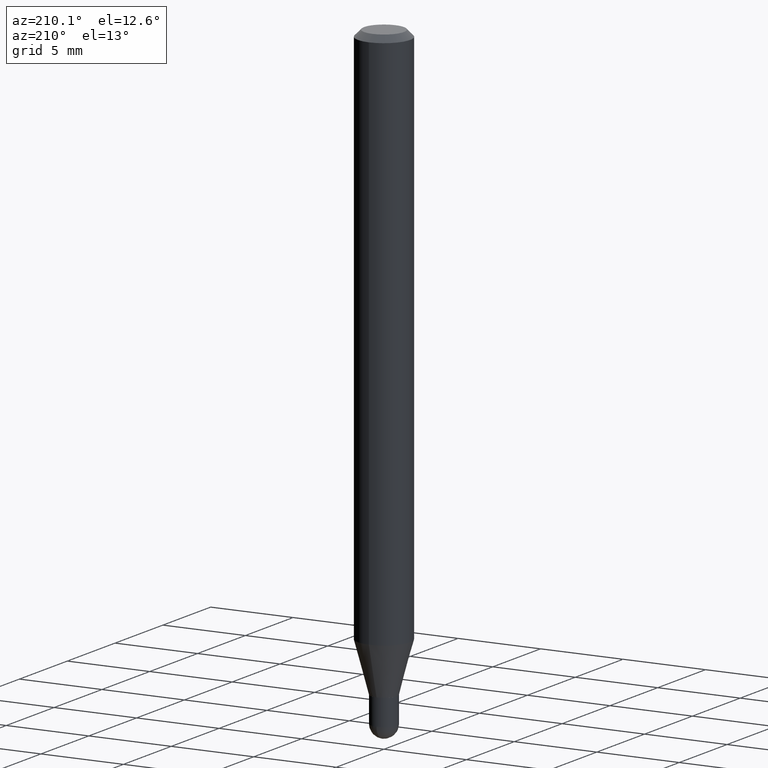
[diagram: clean part render]
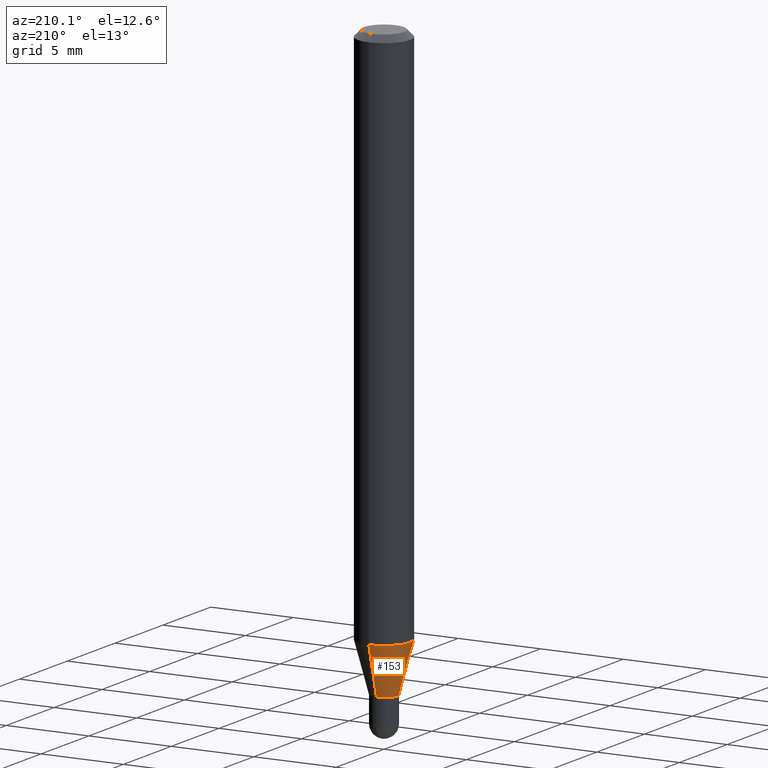
[diagram: same view with one face highlighted and labeled with its STEP entity id]
A machine part, auxiliary view. The second image highlights one B-rep face of the part: STEP entity #153.
In plain terms, the highlighted conical surface has half-angle 15 deg.
Its self-contained STEP definition (entity closure, byte-faithful):
#66 = CARTESIAN_POINT ( 'NONE',  ( -2.164718430082374026E-16, -0.03100000000000456210, -1.407000000000000028 ) ) ;
#68 = CARTESIAN_POINT ( 'NONE',  ( 2.202682480856629310E-16, 0.03099999999999473663, -1.407000000000000028 ) ) ;
#78 = CARTESIAN_POINT ( 'NONE',  ( -2.164718430082374026E-16, -0.03100000000000456210, -1.407000000000000028 ) ) ;
#81 = AXIS2_PLACEMENT_3D ( 'NONE', #372, #349, #464 ) ;
#97 = CIRCLE ( 'NONE', #357, 0.06250000000000000000 ) ;
#103 = VERTEX_POINT ( 'NONE', #484 ) ;
#125 = FACE_OUTER_BOUND ( 'NONE', #232, .T. ) ;
#135 = CIRCLE ( 'NONE', #386, 0.03099999999999964936 ) ;
#148 = VECTOR ( 'NONE', #244, 39.37007874015748854 ) ;
#153 = ADVANCED_FACE ( 'NONE', ( #125 ), #510, .T. ) ;
#158 = VERTEX_POINT ( 'NONE', #66 ) ;
#166 = ORIENTED_EDGE ( 'NONE', *, *, #396, .F. ) ;
#202 = ORIENTED_EDGE ( 'NONE', *, *, #423, .T. ) ;
#203 = DIRECTION ( 'NONE',  ( -6.982962677686265922E-15, -1.000000000000000000, 0.000000000000000000 ) ) ;
#232 = EDGE_LOOP ( 'NONE', ( #284, #424, #202, #166 ) ) ;
#237 = VERTEX_POINT ( 'NONE', #420 ) ;
#244 = DIRECTION ( 'NONE',  ( -1.807323732225378260E-15, -0.2588190451025250693, 0.9659258262890670910 ) ) ;
#284 = ORIENTED_EDGE ( 'NONE', *, *, #404, .F. ) ;
#285 = DIRECTION ( 'NONE',  ( -2.445442830972087969E-29, 3.491518536826648695E-15, 1.000000000000000000 ) ) ;
#349 = DIRECTION ( 'NONE',  ( -2.445442830972087969E-29, 3.491518536826648695E-15, 1.000000000000000000 ) ) ;
#352 = CARTESIAN_POINT ( 'NONE',  ( 3.440738063177728065E-29, -4.912566581315094135E-15, -1.407000000000000028 ) ) ;
#357 = AXIS2_PLACEMENT_3D ( 'NONE', #511, #509, #476 ) ;
#372 = CARTESIAN_POINT ( 'NONE',  ( 3.440738063177728065E-29, -4.912566581315094135E-15, -1.407000000000000028 ) ) ;
#386 = AXIS2_PLACEMENT_3D ( 'NONE', #352, #285, #203 ) ;
#396 = EDGE_CURVE ( 'NONE', #103, #237, #97, .T. ) ;
#404 = EDGE_CURVE ( 'NONE', #413, #103, #470, .T. ) ;
#411 = EDGE_CURVE ( 'NONE', #413, #158, #135, .T. ) ;
#413 = VERTEX_POINT ( 'NONE', #433 ) ;
#420 = CARTESIAN_POINT ( 'NONE',  ( -4.364351673553602629E-16, -0.06250000000000452416, -1.289440399561582629 ) ) ;
#423 = EDGE_CURVE ( 'NONE', #158, #237, #436, .T. ) ;
#424 = ORIENTED_EDGE ( 'NONE', *, *, #411, .T. ) ;
#433 = CARTESIAN_POINT ( 'NONE',  ( 3.321787289678785878E-16, 0.03099999999999473663, -1.407000000000000028 ) ) ;
#436 = LINE ( 'NONE', #78, #148 ) ;
#455 = VECTOR ( 'NONE', #505, 39.37007874015748143 ) ;
#464 = DIRECTION ( 'NONE',  ( -6.982962677686265922E-15, -1.000000000000000000, 0.000000000000000000 ) ) ;
#470 = LINE ( 'NONE', #68, #455 ) ;
#476 = DIRECTION ( 'NONE',  ( -6.982962677686265922E-15, -1.000000000000000000, 4.370956789862821150E-15 ) ) ;
#484 = CARTESIAN_POINT ( 'NONE',  ( 4.440892098500937762E-16, 0.06249999999999546890, -1.289440399561583073 ) ) ;
#505 = DIRECTION ( 'NONE',  ( 1.839019923739649225E-15, 0.2588190451025318417, 0.9659258262890653146 ) ) ;
#509 = DIRECTION ( 'NONE',  ( -2.445442830972087969E-29, 3.491518536826648695E-15, 1.000000000000000000 ) ) ;
#510 = CONICAL_SURFACE ( 'NONE', #81, 0.03099999999999964936, 0.2617993877991574014 ) ;
#511 = CARTESIAN_POINT ( 'NONE',  ( 3.153252781073657425E-29, -4.502105057202427276E-15, -1.289440399561582851 ) ) ;